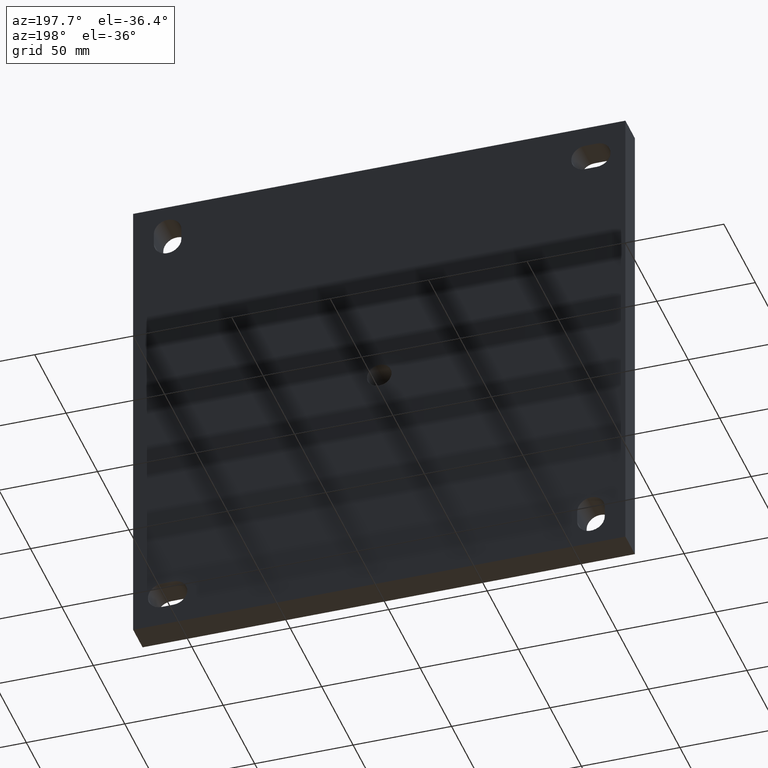
[diagram: clean part render]
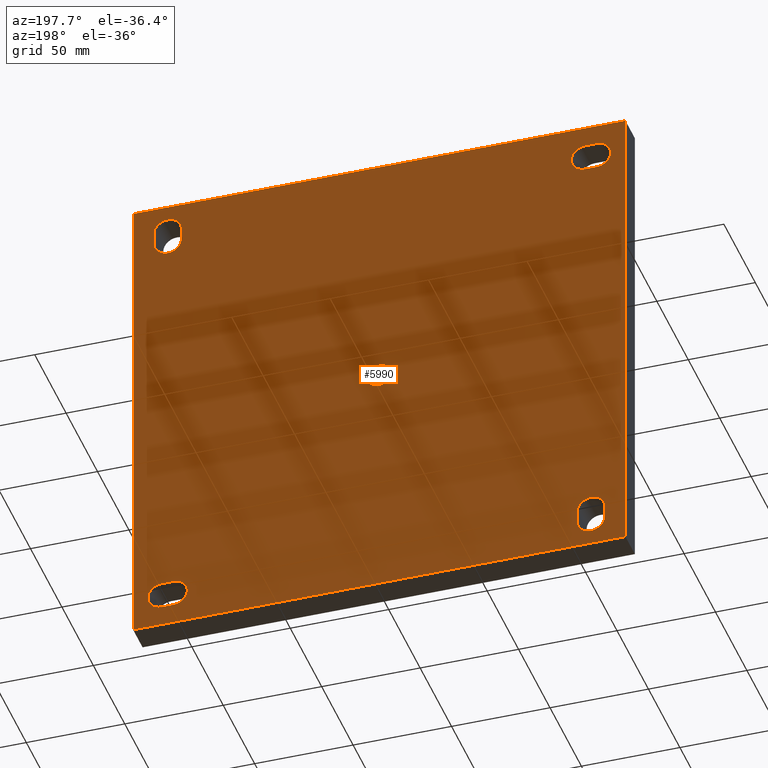
[diagram: same view with one face highlighted and labeled with its STEP entity id]
A machine part, auxiliary view. The second image highlights one B-rep face of the part: STEP entity #5990.
In plain terms, the highlighted planar face has unit normal (0, 1, 0).
Its self-contained STEP definition (entity closure, byte-faithful):
#1 = AXIS2_PLACEMENT_3D ( 'NONE', #5600, #3590, #6575 ) ;
#80 = EDGE_CURVE ( 'NONE', #9268, #2845, #2315, .T. ) ;
#97 = VECTOR ( 'NONE', #4592, 1000.000000000000000 ) ;
#115 = EDGE_CURVE ( 'NONE', #9856, #11783, #4303, .T. ) ;
#134 = CARTESIAN_POINT ( 'NONE',  ( 124.9999999999999858, 15.00000000000000000, -124.9999999999999858 ) ) ;
#144 = DIRECTION ( 'NONE',  ( 0.000000000000000000, 0.000000000000000000, 1.000000000000000000 ) ) ;
#156 = EDGE_CURVE ( 'NONE', #4470, #1754, #10412, .T. ) ;
#280 = CARTESIAN_POINT ( 'NONE',  ( 125.0000000000000000, 15.00000000000000000, 124.9999999999999716 ) ) ;
#363 = DIRECTION ( 'NONE',  ( 0.000000000000000000, 1.000000000000000000, 0.000000000000000000 ) ) ;
#460 = VECTOR ( 'NONE', #144, 1000.000000000000000 ) ;
#469 = AXIS2_PLACEMENT_3D ( 'NONE', #4069, #10484, #7210 ) ;
#483 = AXIS2_PLACEMENT_3D ( 'NONE', #930, #9316, #5187 ) ;
#501 = EDGE_LOOP ( 'NONE', ( #4147, #8314, #3175, #4317, #7797 ) ) ;
#761 = VECTOR ( 'NONE', #6951, 1000.000000000000000 ) ;
#783 = CARTESIAN_POINT ( 'NONE',  ( 114.5000000000000000, 15.00000000000000000, 104.5000000000000426 ) ) ;
#789 = VECTOR ( 'NONE', #6939, 1000.000000000000000 ) ;
#794 = CIRCLE ( 'NONE', #1, 6.999999999999992006 ) ;
#905 = CARTESIAN_POINT ( 'NONE',  ( -104.5000000000000142, 15.00000000000000000, 107.4999999999999858 ) ) ;
#917 = EDGE_CURVE ( 'NONE', #4662, #10644, #6931, .T. ) ;
#923 = DIRECTION ( 'NONE',  ( 0.000000000000000000, 0.000000000000000000, 1.000000000000000000 ) ) ;
#930 = CARTESIAN_POINT ( 'NONE',  ( -107.4999999999999858, 15.00000000000000000, -104.5000000000000426 ) ) ;
#942 = DIRECTION ( 'NONE',  ( 0.000000000000000000, 0.000000000000000000, 1.000000000000000000 ) ) ;
#1076 = VECTOR ( 'NONE', #2699, 1000.000000000000000 ) ;
#1167 = ORIENTED_EDGE ( 'NONE', *, *, #11416, .F. ) ;
#1256 = VECTOR ( 'NONE', #9573, 1000.000000000000000 ) ;
#1262 = EDGE_CURVE ( 'NONE', #13734, #5570, #12248, .T. ) ;
#1293 = EDGE_LOOP ( 'NONE', ( #12582, #7090, #5243, #4186 ) ) ;
#1311 = VECTOR ( 'NONE', #3155, 1000.000000000000000 ) ;
#1326 = ORIENTED_EDGE ( 'NONE', *, *, #13490, .F. ) ;
#1327 = EDGE_CURVE ( 'NONE', #11783, #9856, #12425, .T. ) ;
#1339 = ORIENTED_EDGE ( 'NONE', *, *, #10886, .F. ) ;
#1365 = VERTEX_POINT ( 'NONE', #1394 ) ;
#1381 = DIRECTION ( 'NONE',  ( -1.000000000000000000, -0.000000000000000000, -0.000000000000000000 ) ) ;
#1394 = CARTESIAN_POINT ( 'NONE',  ( -124.9999999999999858, 15.00000000000000000, -124.9999999999999858 ) ) ;
#1423 = ORIENTED_EDGE ( 'NONE', *, *, #1262, .F. ) ;
#1425 = DIRECTION ( 'NONE',  ( 0.000000000000000000, 0.000000000000000000, 1.000000000000000000 ) ) ;
#1570 = CARTESIAN_POINT ( 'NONE',  ( 104.5000000000000000, 15.00000000000000000, -100.4999999999999858 ) ) ;
#1660 = EDGE_LOOP ( 'NONE', ( #11884, #13625 ) ) ;
#1688 = DIRECTION ( 'NONE',  ( 0.000000000000000000, 1.000000000000000000, 0.000000000000000000 ) ) ;
#1754 = VERTEX_POINT ( 'NONE', #6950 ) ;
#1933 = EDGE_LOOP ( 'NONE', ( #5409, #7477, #1326, #13085 ) ) ;
#1977 = CARTESIAN_POINT ( 'NONE',  ( 104.5000000000000000, 15.00000000000000000, -114.4999999999999858 ) ) ;
#2056 = EDGE_CURVE ( 'NONE', #10644, #5000, #11879, .T. ) ;
#2079 = LINE ( 'NONE', #1570, #1076 ) ;
#2089 = CARTESIAN_POINT ( 'NONE',  ( 7.654042494670957606E-16, 15.00000000000000000, -6.250000000000000000 ) ) ;
#2270 = VERTEX_POINT ( 'NONE', #3493 ) ;
#2285 = EDGE_CURVE ( 'NONE', #11847, #2270, #794, .T. ) ;
#2315 = LINE ( 'NONE', #8439, #1311 ) ;
#2412 = AXIS2_PLACEMENT_3D ( 'NONE', #6269, #3097, #11509 ) ;
#2503 = ORIENTED_EDGE ( 'NONE', *, *, #917, .F. ) ;
#2699 = DIRECTION ( 'NONE',  ( 1.000000000000000000, 0.000000000000000000, 0.000000000000000000 ) ) ;
#2845 = VERTEX_POINT ( 'NONE', #8368 ) ;
#2929 = DIRECTION ( 'NONE',  ( 0.000000000000000000, 0.000000000000000000, 1.000000000000000000 ) ) ;
#3001 = CARTESIAN_POINT ( 'NONE',  ( 110.5000000000000000, 15.00000000000000000, -114.4999999999999858 ) ) ;
#3097 = DIRECTION ( 'NONE',  ( 0.000000000000000000, 1.000000000000000000, 0.000000000000000000 ) ) ;
#3155 = DIRECTION ( 'NONE',  ( 0.000000000000000000, 0.000000000000000000, 1.000000000000000000 ) ) ;
#3156 = AXIS2_PLACEMENT_3D ( 'NONE', #8200, #6093, #2929 ) ;
#3175 = ORIENTED_EDGE ( 'NONE', *, *, #11858, .F. ) ;
#3191 = DIRECTION ( 'NONE',  ( 0.000000000000000000, 1.000000000000000000, 0.000000000000000000 ) ) ;
#3196 = CIRCLE ( 'NONE', #12299, 7.000000000000006217 ) ;
#3391 = LINE ( 'NONE', #7896, #8539 ) ;
#3393 = FACE_BOUND ( 'NONE', #8435, .T. ) ;
#3467 = EDGE_CURVE ( 'NONE', #4932, #12796, #12033, .T. ) ;
#3469 = VERTEX_POINT ( 'NONE', #134 ) ;
#3493 = CARTESIAN_POINT ( 'NONE',  ( 104.5000000000000000, 15.00000000000000000, -100.4999999999999858 ) ) ;
#3498 = ORIENTED_EDGE ( 'NONE', *, *, #2056, .F. ) ;
#3508 = AXIS2_PLACEMENT_3D ( 'NONE', #905, #13489, #12380 ) ;
#3518 = ORIENTED_EDGE ( 'NONE', *, *, #2285, .F. ) ;
#3583 = LINE ( 'NONE', #4635, #97 ) ;
#3589 = AXIS2_PLACEMENT_3D ( 'NONE', #13511, #1688, #9107 ) ;
#3590 = DIRECTION ( 'NONE',  ( 0.000000000000000000, 1.000000000000000000, 0.000000000000000000 ) ) ;
#3617 = EDGE_CURVE ( 'NONE', #1365, #4932, #3583, .T. ) ;
#4069 = CARTESIAN_POINT ( 'NONE',  ( -107.4999999999999858, 15.00000000000000000, -104.5000000000000426 ) ) ;
#4096 = LINE ( 'NONE', #8168, #789 ) ;
#4147 = ORIENTED_EDGE ( 'NONE', *, *, #6883, .F. ) ;
#4186 = ORIENTED_EDGE ( 'NONE', *, *, #3467, .T. ) ;
#4214 = DIRECTION ( 'NONE',  ( 0.000000000000000000, 0.000000000000000000, 1.000000000000000000 ) ) ;
#4225 = CARTESIAN_POINT ( 'NONE',  ( -124.9999999999999574, 15.00000000000000000, 124.9999999999999716 ) ) ;
#4303 = CIRCLE ( 'NONE', #3156, 6.250000000000000000 ) ;
#4317 = ORIENTED_EDGE ( 'NONE', *, *, #6012, .F. ) ;
#4391 = CIRCLE ( 'NONE', #3589, 6.999999999999992006 ) ;
#4397 = FACE_BOUND ( 'NONE', #1660, .T. ) ;
#4418 = VERTEX_POINT ( 'NONE', #3001 ) ;
#4470 = VERTEX_POINT ( 'NONE', #10757 ) ;
#4592 = DIRECTION ( 'NONE',  ( 1.110223024625156787E-16, 0.000000000000000000, 1.000000000000000000 ) ) ;
#4635 = CARTESIAN_POINT ( 'NONE',  ( -124.9999999999999858, 15.00000000000000000, -124.9999999999999858 ) ) ;
#4662 = VERTEX_POINT ( 'NONE', #8776 ) ;
#4739 = EDGE_CURVE ( 'NONE', #12796, #3469, #3391, .T. ) ;
#4932 = VERTEX_POINT ( 'NONE', #4225 ) ;
#5000 = VERTEX_POINT ( 'NONE', #13741 ) ;
#5037 = CIRCLE ( 'NONE', #12370, 7.000000000000006217 ) ;
#5091 = CARTESIAN_POINT ( 'NONE',  ( 107.5000000000000000, 15.00000000000000000, 104.5000000000000142 ) ) ;
#5149 = CARTESIAN_POINT ( 'NONE',  ( 107.5000000000000000, 15.00000000000000000, 110.5000000000000284 ) ) ;
#5177 = CARTESIAN_POINT ( 'NONE',  ( -107.4999999999999858, 15.00000000000000000, -110.5000000000000426 ) ) ;
#5187 = DIRECTION ( 'NONE',  ( 0.000000000000000000, 0.000000000000000000, 1.000000000000000000 ) ) ;
#5243 = ORIENTED_EDGE ( 'NONE', *, *, #3617, .T. ) ;
#5345 = CARTESIAN_POINT ( 'NONE',  ( -124.9999999999999858, 15.00000000000000000, -124.9999999999999858 ) ) ;
#5409 = ORIENTED_EDGE ( 'NONE', *, *, #13224, .F. ) ;
#5570 = VERTEX_POINT ( 'NONE', #5741 ) ;
#5594 = VERTEX_POINT ( 'NONE', #9407 ) ;
#5600 = CARTESIAN_POINT ( 'NONE',  ( 104.5000000000000000, 15.00000000000000000, -107.5000000000000000 ) ) ;
#5625 = VERTEX_POINT ( 'NONE', #12577 ) ;
#5741 = CARTESIAN_POINT ( 'NONE',  ( 114.5000000000000000, 15.00000000000000000, 110.5000000000000142 ) ) ;
#5751 = VECTOR ( 'NONE', #12325, 1000.000000000000000 ) ;
#5927 = AXIS2_PLACEMENT_3D ( 'NONE', #5091, #9354, #923 ) ;
#5990 = ADVANCED_FACE ( 'NONE', ( #6862, #13664, #11673, #3393, #4397, #12019 ), #13650, .T. ) ;
#6012 = EDGE_CURVE ( 'NONE', #2845, #7554, #6042, .T. ) ;
#6042 = CIRCLE ( 'NONE', #469, 7.000000000000006217 ) ;
#6093 = DIRECTION ( 'NONE',  ( 0.000000000000000000, 1.000000000000000000, 0.000000000000000000 ) ) ;
#6201 = DIRECTION ( 'NONE',  ( -1.000000000000000000, -0.000000000000000000, -0.000000000000000000 ) ) ;
#6269 = CARTESIAN_POINT ( 'NONE',  ( 0.000000000000000000, 15.00000000000000000, 0.000000000000000000 ) ) ;
#6509 = CIRCLE ( 'NONE', #483, 7.000000000000006217 ) ;
#6519 = ORIENTED_EDGE ( 'NONE', *, *, #13152, .F. ) ;
#6575 = DIRECTION ( 'NONE',  ( 0.000000000000000000, 0.000000000000000000, 1.000000000000000000 ) ) ;
#6679 = CARTESIAN_POINT ( 'NONE',  ( -107.4999999999999858, 15.00000000000000000, -97.50000000000002842 ) ) ;
#6807 = CARTESIAN_POINT ( 'NONE',  ( -110.4999999999999858, 15.00000000000000000, 114.4999999999999858 ) ) ;
#6862 = FACE_BOUND ( 'NONE', #501, .T. ) ;
#6883 = EDGE_CURVE ( 'NONE', #11517, #9268, #5037, .T. ) ;
#6931 = CIRCLE ( 'NONE', #5927, 7.000000000000006217 ) ;
#6939 = DIRECTION ( 'NONE',  ( -0.000000000000000000, -0.000000000000000000, -1.000000000000000000 ) ) ;
#6950 = CARTESIAN_POINT ( 'NONE',  ( -110.4999999999999858, 15.00000000000000000, 100.4999999999999716 ) ) ;
#6951 = DIRECTION ( 'NONE',  ( 1.000000000000000000, 0.000000000000000000, 0.000000000000000000 ) ) ;
#7090 = ORIENTED_EDGE ( 'NONE', *, *, #13244, .T. ) ;
#7210 = DIRECTION ( 'NONE',  ( 0.000000000000000000, 0.000000000000000000, 1.000000000000000000 ) ) ;
#7286 = DIRECTION ( 'NONE',  ( 0.000000000000000000, 1.000000000000000000, 0.000000000000000000 ) ) ;
#7340 = CIRCLE ( 'NONE', #7587, 7.000000000000006217 ) ;
#7368 = CARTESIAN_POINT ( 'NONE',  ( 100.4999999999999858, 15.00000000000000000, 104.5000000000000426 ) ) ;
#7477 = ORIENTED_EDGE ( 'NONE', *, *, #156, .F. ) ;
#7554 = VERTEX_POINT ( 'NONE', #6679 ) ;
#7576 = CARTESIAN_POINT ( 'NONE',  ( -100.4999999999999716, 15.00000000000000000, -110.5000000000000426 ) ) ;
#7587 = AXIS2_PLACEMENT_3D ( 'NONE', #10453, #9484, #4214 ) ;
#7590 = LINE ( 'NONE', #783, #5751 ) ;
#7686 = VECTOR ( 'NONE', #1381, 1000.000000000000000 ) ;
#7797 = ORIENTED_EDGE ( 'NONE', *, *, #80, .F. ) ;
#7896 = CARTESIAN_POINT ( 'NONE',  ( 124.9999999999999858, 15.00000000000000000, -124.9999999999999858 ) ) ;
#8004 = CARTESIAN_POINT ( 'NONE',  ( 107.5000000000000000, 15.00000000000000000, 117.5000000000000284 ) ) ;
#8083 = CARTESIAN_POINT ( 'NONE',  ( -114.5000000000000000, 15.00000000000000000, -110.5000000000000426 ) ) ;
#8091 = AXIS2_PLACEMENT_3D ( 'NONE', #5149, #7286, #942 ) ;
#8168 = CARTESIAN_POINT ( 'NONE',  ( -100.4999999999999716, 15.00000000000000000, -110.5000000000000426 ) ) ;
#8200 = CARTESIAN_POINT ( 'NONE',  ( 0.000000000000000000, 15.00000000000000000, 0.000000000000000000 ) ) ;
#8307 = CARTESIAN_POINT ( 'NONE',  ( -110.4999999999999858, 15.00000000000000000, 100.4999999999999716 ) ) ;
#8314 = ORIENTED_EDGE ( 'NONE', *, *, #9243, .F. ) ;
#8368 = CARTESIAN_POINT ( 'NONE',  ( -114.4999999999999858, 15.00000000000000000, -104.5000000000000568 ) ) ;
#8435 = EDGE_LOOP ( 'NONE', ( #3518, #1167, #13324, #1339 ) ) ;
#8439 = CARTESIAN_POINT ( 'NONE',  ( -114.5000000000000000, 15.00000000000000000, -110.5000000000000426 ) ) ;
#8519 = AXIS2_PLACEMENT_3D ( 'NONE', #8815, #9729, #9682 ) ;
#8539 = VECTOR ( 'NONE', #10145, 1000.000000000000000 ) ;
#8582 = EDGE_CURVE ( 'NONE', #5570, #4662, #7590, .T. ) ;
#8776 = CARTESIAN_POINT ( 'NONE',  ( 114.5000000000000000, 15.00000000000000000, 104.5000000000000426 ) ) ;
#8815 = CARTESIAN_POINT ( 'NONE',  ( 0.000000000000000000, 15.00000000000000000, 0.000000000000000000 ) ) ;
#9107 = DIRECTION ( 'NONE',  ( 0.000000000000000000, 0.000000000000000000, 1.000000000000000000 ) ) ;
#9243 = EDGE_CURVE ( 'NONE', #5625, #11517, #4096, .T. ) ;
#9268 = VERTEX_POINT ( 'NONE', #8083 ) ;
#9316 = DIRECTION ( 'NONE',  ( 0.000000000000000000, 1.000000000000000000, 0.000000000000000000 ) ) ;
#9354 = DIRECTION ( 'NONE',  ( 0.000000000000000000, 1.000000000000000000, 0.000000000000000000 ) ) ;
#9407 = CARTESIAN_POINT ( 'NONE',  ( -110.4999999999999858, 15.00000000000000000, 114.4999999999999858 ) ) ;
#9451 = CARTESIAN_POINT ( 'NONE',  ( -104.5000000000000142, 15.00000000000000000, 114.4999999999999858 ) ) ;
#9484 = DIRECTION ( 'NONE',  ( 0.000000000000000000, 1.000000000000000000, 0.000000000000000000 ) ) ;
#9573 = DIRECTION ( 'NONE',  ( 1.000000000000000000, 0.000000000000000000, 0.000000000000000000 ) ) ;
#9659 = CARTESIAN_POINT ( 'NONE',  ( -124.9999999999999574, 15.00000000000000000, 124.9999999999999716 ) ) ;
#9682 = DIRECTION ( 'NONE',  ( 0.000000000000000000, 0.000000000000000000, 1.000000000000000000 ) ) ;
#9729 = DIRECTION ( 'NONE',  ( 0.000000000000000000, 1.000000000000000000, 0.000000000000000000 ) ) ;
#9845 = CARTESIAN_POINT ( 'NONE',  ( -110.4999999999999858, 15.00000000000000000, 107.4999999999999858 ) ) ;
#9856 = VERTEX_POINT ( 'NONE', #2089 ) ;
#10145 = DIRECTION ( 'NONE',  ( -5.551115123125783935E-17, -0.000000000000000000, -1.000000000000000000 ) ) ;
#10234 = ORIENTED_EDGE ( 'NONE', *, *, #8582, .F. ) ;
#10412 = LINE ( 'NONE', #8307, #12083 ) ;
#10423 = CARTESIAN_POINT ( 'NONE',  ( 104.5000000000000000, 15.00000000000000000, -114.4999999999999858 ) ) ;
#10453 = CARTESIAN_POINT ( 'NONE',  ( 107.5000000000000000, 15.00000000000000000, 110.5000000000000284 ) ) ;
#10471 = CIRCLE ( 'NONE', #3508, 7.000000000000006217 ) ;
#10481 = LINE ( 'NONE', #5345, #7686 ) ;
#10484 = DIRECTION ( 'NONE',  ( 0.000000000000000000, 1.000000000000000000, 0.000000000000000000 ) ) ;
#10504 = EDGE_CURVE ( 'NONE', #5594, #11913, #11523, .T. ) ;
#10644 = VERTEX_POINT ( 'NONE', #7368 ) ;
#10757 = CARTESIAN_POINT ( 'NONE',  ( -104.5000000000000142, 15.00000000000000000, 100.4999999999999716 ) ) ;
#10789 = CARTESIAN_POINT ( 'NONE',  ( 100.4999999999999858, 15.00000000000000000, 104.5000000000000426 ) ) ;
#10886 = EDGE_CURVE ( 'NONE', #2270, #11864, #2079, .T. ) ;
#11416 = EDGE_CURVE ( 'NONE', #4418, #11847, #13020, .T. ) ;
#11476 = DIRECTION ( 'NONE',  ( 0.000000000000000000, 0.000000000000000000, 1.000000000000000000 ) ) ;
#11509 = DIRECTION ( 'NONE',  ( 0.000000000000000000, -0.000000000000000000, 1.000000000000000000 ) ) ;
#11517 = VERTEX_POINT ( 'NONE', #7576 ) ;
#11523 = LINE ( 'NONE', #6807, #761 ) ;
#11647 = EDGE_CURVE ( 'NONE', #11864, #4418, #4391, .T. ) ;
#11673 = FACE_BOUND ( 'NONE', #1933, .T. ) ;
#11783 = VERTEX_POINT ( 'NONE', #13556 ) ;
#11847 = VERTEX_POINT ( 'NONE', #10423 ) ;
#11858 = EDGE_CURVE ( 'NONE', #7554, #5625, #6509, .T. ) ;
#11864 = VERTEX_POINT ( 'NONE', #12671 ) ;
#11879 = LINE ( 'NONE', #10789, #460 ) ;
#11884 = ORIENTED_EDGE ( 'NONE', *, *, #1327, .F. ) ;
#11913 = VERTEX_POINT ( 'NONE', #9451 ) ;
#12019 = FACE_OUTER_BOUND ( 'NONE', #1293, .T. ) ;
#12033 = LINE ( 'NONE', #9659, #1256 ) ;
#12083 = VECTOR ( 'NONE', #6201, 1000.000000000000000 ) ;
#12248 = CIRCLE ( 'NONE', #8091, 7.000000000000006217 ) ;
#12299 = AXIS2_PLACEMENT_3D ( 'NONE', #9845, #363, #1425 ) ;
#12325 = DIRECTION ( 'NONE',  ( -0.000000000000000000, -0.000000000000000000, -1.000000000000000000 ) ) ;
#12370 = AXIS2_PLACEMENT_3D ( 'NONE', #5177, #3191, #11476 ) ;
#12380 = DIRECTION ( 'NONE',  ( 0.000000000000000000, 0.000000000000000000, 1.000000000000000000 ) ) ;
#12425 = CIRCLE ( 'NONE', #8519, 6.250000000000000000 ) ;
#12529 = VECTOR ( 'NONE', #12596, 1000.000000000000000 ) ;
#12577 = CARTESIAN_POINT ( 'NONE',  ( -100.4999999999999716, 15.00000000000000000, -104.5000000000000426 ) ) ;
#12582 = ORIENTED_EDGE ( 'NONE', *, *, #4739, .T. ) ;
#12596 = DIRECTION ( 'NONE',  ( -1.000000000000000000, -0.000000000000000000, -0.000000000000000000 ) ) ;
#12671 = CARTESIAN_POINT ( 'NONE',  ( 110.5000000000000000, 15.00000000000000000, -100.5000000000000000 ) ) ;
#12796 = VERTEX_POINT ( 'NONE', #280 ) ;
#13020 = LINE ( 'NONE', #1977, #12529 ) ;
#13085 = ORIENTED_EDGE ( 'NONE', *, *, #10504, .F. ) ;
#13152 = EDGE_CURVE ( 'NONE', #5000, #13734, #7340, .T. ) ;
#13157 = EDGE_LOOP ( 'NONE', ( #2503, #10234, #1423, #6519, #3498 ) ) ;
#13224 = EDGE_CURVE ( 'NONE', #1754, #5594, #3196, .T. ) ;
#13244 = EDGE_CURVE ( 'NONE', #3469, #1365, #10481, .T. ) ;
#13324 = ORIENTED_EDGE ( 'NONE', *, *, #11647, .F. ) ;
#13489 = DIRECTION ( 'NONE',  ( 0.000000000000000000, 1.000000000000000000, 0.000000000000000000 ) ) ;
#13490 = EDGE_CURVE ( 'NONE', #11913, #4470, #10471, .T. ) ;
#13511 = CARTESIAN_POINT ( 'NONE',  ( 110.4999999999999858, 15.00000000000000000, -107.5000000000000000 ) ) ;
#13556 = CARTESIAN_POINT ( 'NONE',  ( 0.000000000000000000, 15.00000000000000000, 6.250000000000000000 ) ) ;
#13625 = ORIENTED_EDGE ( 'NONE', *, *, #115, .F. ) ;
#13650 = PLANE ( 'NONE',  #2412 ) ;
#13664 = FACE_BOUND ( 'NONE', #13157, .T. ) ;
#13734 = VERTEX_POINT ( 'NONE', #8004 ) ;
#13741 = CARTESIAN_POINT ( 'NONE',  ( 100.4999999999999858, 15.00000000000000000, 110.5000000000000000 ) ) ;